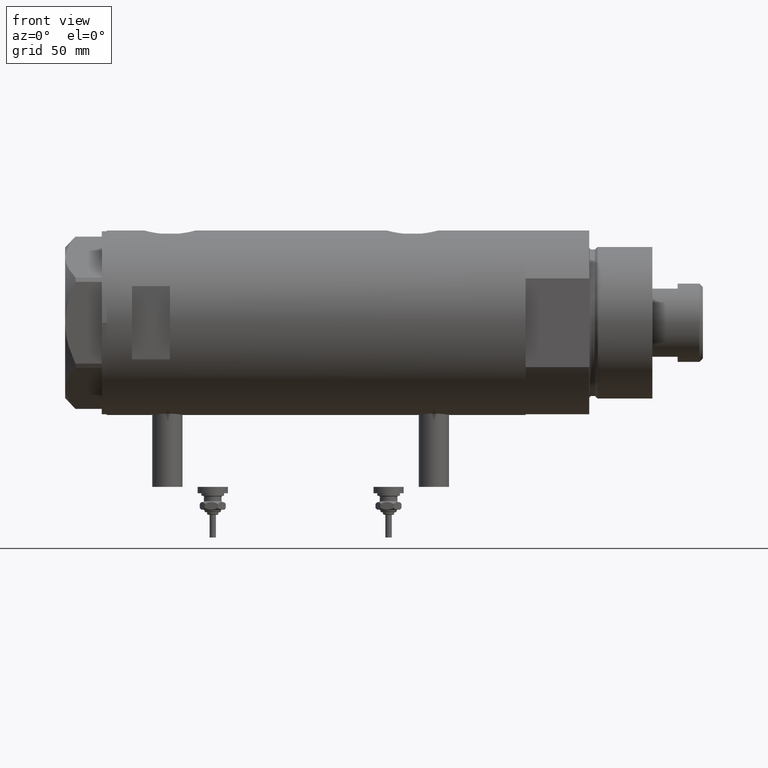
[diagram: clean part render]
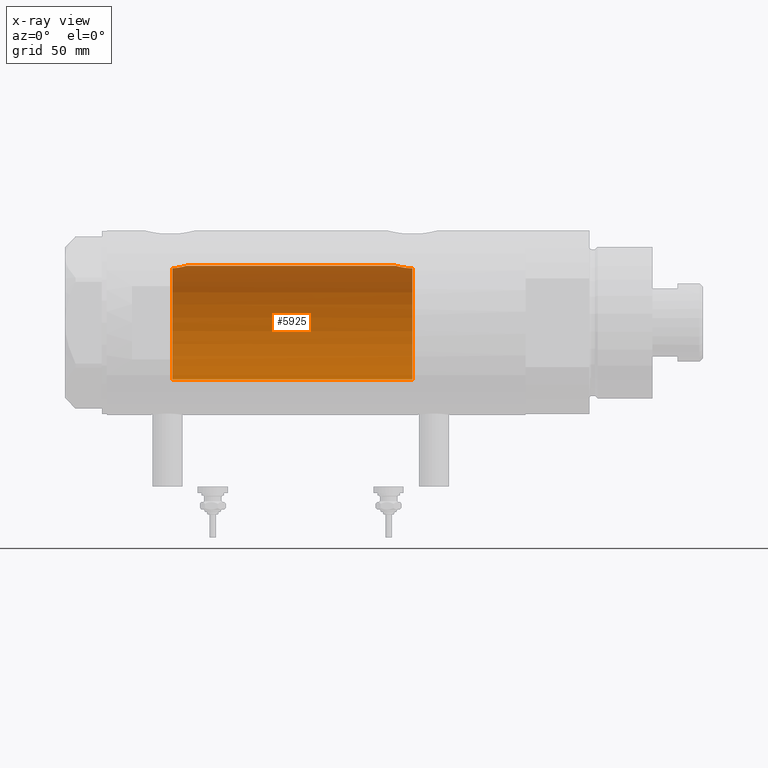
[diagram: x-ray — body ghosted, one internal face saturated and labeled with its STEP entity id]
A machine part, front view, then the same camera in x-ray: the body is ghosted and one INTERNAL B-rep face — a face not visible from any outside direction — is saturated and labeled: STEP entity #5925.
In plain terms, the highlighted cylindrical surface (partial cylindrical patch) has radius 22.5 mm, axis along (1, 0, -0).
Its self-contained STEP definition (entity closure, byte-faithful):
#17 = CARTESIAN_POINT ( 'NONE',  ( 22.14421896774458887, 3.996618394220599946, 52.65850411031065192 ) ) ;
#48 = CARTESIAN_POINT ( 'NONE',  ( 21.58771824211648038, 6.342145538420561834, 56.13591924784430631 ) ) ;
#147 = LINE ( 'NONE', #2015, #4623 ) ;
#229 = EDGE_CURVE ( 'NONE', #388, #4744, #380, .T. ) ;
#334 = CARTESIAN_POINT ( 'NONE',  ( 22.31307373663816662, 2.921646833104065255, -32.18858613169776817 ) ) ;
#358 = CARTESIAN_POINT ( 'NONE',  ( 21.54248662244912893, 6.494090541481658541, -37.01861175082140676 ) ) ;
#380 = LINE ( 'NONE', #934, #2686 ) ;
#388 = VERTEX_POINT ( 'NONE', #1084 ) ;
#490 = CARTESIAN_POINT ( 'NONE',  ( 21.55996057785741726, 6.435875139617805551, 56.51641692772588499 ) ) ;
#552 = CARTESIAN_POINT ( 'NONE',  ( 22.44738562510071489, 1.549445000368393277, 51.50203276325539292 ) ) ;
#586 = CARTESIAN_POINT ( 'NONE',  ( -22.50000000000000355, 0.000000000000000000, -38.09999999999999432 ) ) ;
#644 = CARTESIAN_POINT ( 'NONE',  ( -22.50000000000000355, 0.000000000000000000, 56.90000000000000568 ) ) ;
#707 = DIRECTION ( 'NONE',  ( -1.000000000000000000, 0.000000000000000000, 0.000000000000000000 ) ) ;
#786 = VERTEX_POINT ( 'NONE', #586 ) ;
#816 = CARTESIAN_POINT ( 'NONE',  ( 22.25860915731085754, 3.306748059303223464, -32.39512753277105617 ) ) ;
#849 = CARTESIAN_POINT ( 'NONE',  ( 21.98170506496023435, 4.804030677015544981, -33.59847163284562299 ) ) ;
#925 = CARTESIAN_POINT ( 'NONE',  ( 21.85834467356397681, 5.340944334976049923, 54.03736885285049851 ) ) ;
#934 = CARTESIAN_POINT ( 'NONE',  ( 22.50000000000000355, 2.755455298081545172E-15, 82.90000000000000568 ) ) ;
#989 = ORIENTED_EDGE ( 'NONE', *, *, #2673, .T. ) ;
#1039 = CARTESIAN_POINT ( 'NONE',  ( 22.34487948028763071, 2.662928462767973237, 51.87031008565885060 ) ) ;
#1058 = B_SPLINE_CURVE_WITH_KNOTS ( 'NONE', 3,
 ( #4439, #4957, #5810, #5328, #4012, #334, #816, #5897, #2146, #849, #1681, #1215, #5861, #3569, #1770, #3116, #4471, #358, #1705, #3602, #2574, #2112 ),
 .UNSPECIFIED., .F., .F.,
 ( 4, 2, 2, 2, 2, 2, 2, 2, 2, 2, 4 ),
 ( 0.02068572879290663316, 0.02197833177876012262, 0.02327093476461361554, 0.02456353775046710500, 0.02585614073632059445, 0.02650244222924734785, 0.02714874372217410126, 0.02844134670802762888, 0.02973394969388114956, 0.03038025118680791337, 0.03102655267973467718 ),
 .UNSPECIFIED. ) ;
#1084 = CARTESIAN_POINT ( 'NONE',  ( 22.50000000000000355, 0.000000000000000000, 51.32000000000000028 ) ) ;
#1182 = EDGE_CURVE ( 'NONE', #786, #2242, #4816, .T. ) ;
#1215 = CARTESIAN_POINT ( 'NONE',  ( 21.88602906110443058, 5.222191658358659616, -34.09110908501991588 ) ) ;
#1306 = DIRECTION ( 'NONE',  ( -1.000000000000000000, 0.000000000000000000, 0.000000000000000000 ) ) ;
#1359 = EDGE_CURVE ( 'NONE', #3585, #388, #4792, .T. ) ;
#1396 = CARTESIAN_POINT ( 'NONE',  ( 22.41810768969941847, 1.927264596308556399, 51.60552498238021002 ) ) ;
#1446 = CARTESIAN_POINT ( 'NONE',  ( 21.80257506594836059, 5.561983929949493088, 54.36293428743496747 ) ) ;
#1482 = CARTESIAN_POINT ( 'NONE',  ( 21.70300828301578733, 5.938634204148080187, 55.04008341356918521 ) ) ;
#1602 = FACE_OUTER_BOUND ( 'NONE', #2014, .T. ) ;
#1680 = CARTESIAN_POINT ( 'NONE',  ( 21.53958216864942088, 6.503568251352486840, 56.90000000000000568 ) ) ;
#1681 = CARTESIAN_POINT ( 'NONE',  ( 21.94924653817634663, 4.949760619110008975, -33.75922104935666113 ) ) ;
#1705 = CARTESIAN_POINT ( 'NONE',  ( 21.53277870401796434, 6.526097350343573744, -37.23193080670432664 ) ) ;
#1770 = CARTESIAN_POINT ( 'NONE',  ( 21.71097692913352617, 5.908765693315405798, -35.17224774632267525 ) ) ;
#1837 = CARTESIAN_POINT ( 'NONE',  ( 22.45973433770731020, 1.359115216171840279, 51.45894713662338660 ) ) ;
#1951 = CARTESIAN_POINT ( 'NONE',  ( 21.65875036540690601, 6.096384986856001831, 55.39350157007414310 ) ) ;
#1967 = EDGE_CURVE ( 'NONE', #4744, #2242, #1058, .T. ) ;
#2002 = CYLINDRICAL_SURFACE ( 'NONE', #2818, 22.50000000000000355 ) ;
#2014 = EDGE_LOOP ( 'NONE', ( #4412, #3006, #989, #2357, #3227, #3695 ) ) ;
#2015 = CARTESIAN_POINT ( 'NONE',  ( -22.50000000000000355, 0.000000000000000000, 82.90000000000000568 ) ) ;
#2112 = CARTESIAN_POINT ( 'NONE',  ( 21.51635656889892800, 6.580000000000002736, -38.10000000000000142 ) ) ;
#2146 = CARTESIAN_POINT ( 'NONE',  ( 22.07793805162484446, 4.348669293362732446, -33.14321183416397076 ) ) ;
#2242 = VERTEX_POINT ( 'NONE', #2866 ) ;
#2340 = CARTESIAN_POINT ( 'NONE',  ( 21.53958216864942088, 6.503568251352486840, 56.90000000000000568 ) ) ;
#2357 = ORIENTED_EDGE ( 'NONE', *, *, #4353, .T. ) ;
#2500 = CIRCLE ( 'NONE', #5297, 22.50000000000000355 ) ;
#2538 = CARTESIAN_POINT ( 'NONE',  ( 0.000000000000000000, 0.000000000000000000, 56.90000000000000568 ) ) ;
#2552 = CARTESIAN_POINT ( 'NONE',  ( 0.000000000000000000, 0.000000000000000000, 82.90000000000000568 ) ) ;
#2574 = CARTESIAN_POINT ( 'NONE',  ( 21.51635656889893156, 6.580000000000002736, -37.88312317022887754 ) ) ;
#2673 = EDGE_CURVE ( 'NONE', #3585, #5149, #2500, .T. ) ;
#2686 = VECTOR ( 'NONE', #4118, 1000.000000000000000 ) ;
#2741 = CARTESIAN_POINT ( 'NONE',  ( 22.03020271031499888, 4.583618747547679284, 53.16326305060303525 ) ) ;
#2766 = CARTESIAN_POINT ( 'NONE',  ( 21.54850992350584349, 6.473999851071386757, 56.70769989068857342 ) ) ;
#2818 = AXIS2_PLACEMENT_3D ( 'NONE', #2552, #5331, #707 ) ;
#2866 = CARTESIAN_POINT ( 'NONE',  ( 21.51635656889892800, 6.580000000000002736, -38.10000000000000142 ) ) ;
#2887 = CARTESIAN_POINT ( 'NONE',  ( 22.50000000000000355, 8.058593785575293352E-16, -31.51999999999999957 ) ) ;
#3006 = ORIENTED_EDGE ( 'NONE', *, *, #1359, .F. ) ;
#3116 = CARTESIAN_POINT ( 'NONE',  ( 21.61738790272778843, 6.242481197317898634, -35.97475324290417831 ) ) ;
#3227 = ORIENTED_EDGE ( 'NONE', *, *, #1182, .T. ) ;
#3238 = CARTESIAN_POINT ( 'NONE',  ( 22.50000000000000355, 0.3947970979781463829, 51.31999999999999318 ) ) ;
#3302 = CARTESIAN_POINT ( 'NONE',  ( 21.97198143592078878, 4.852313884858198811, 53.43898489903312310 ) ) ;
#3569 = CARTESIAN_POINT ( 'NONE',  ( 21.76592257976932032, 5.705656113855375189, -34.79484284637812408 ) ) ;
#3585 = VERTEX_POINT ( 'NONE', #1680 ) ;
#3602 = CARTESIAN_POINT ( 'NONE',  ( 21.51969523957628283, 6.569111213712935715, -37.66380209493692632 ) ) ;
#3670 = CARTESIAN_POINT ( 'NONE',  ( 22.48961798642638499, 0.7839168256130851775, 51.35525408827136573 ) ) ;
#3695 = ORIENTED_EDGE ( 'NONE', *, *, #1967, .F. ) ;
#3697 = CARTESIAN_POINT ( 'NONE',  ( 21.60406082673097927, 6.286405977953741342, 55.94666670735803393 ) ) ;
#3861 = DIRECTION ( 'NONE',  ( -0.000000000000000000, -0.000000000000000000, -1.000000000000000000 ) ) ;
#4012 = CARTESIAN_POINT ( 'NONE',  ( 22.40265168709897736, 2.128491761919761416, -31.85897789146818582 ) ) ;
#4118 = DIRECTION ( 'NONE',  ( -0.000000000000000000, -0.000000000000000000, -1.000000000000000000 ) ) ;
#4353 = EDGE_CURVE ( 'NONE', #5149, #786, #147, .T. ) ;
#4395 = DIRECTION ( 'NONE',  ( 0.000000000000000000, 0.000000000000000000, 1.000000000000000000 ) ) ;
#4412 = ORIENTED_EDGE ( 'NONE', *, *, #229, .F. ) ;
#4439 = CARTESIAN_POINT ( 'NONE',  ( 22.50000000000000355, 8.058593785575293352E-16, -31.51999999999999957 ) ) ;
#4471 = CARTESIAN_POINT ( 'NONE',  ( 21.58039466125149630, 6.367443256290042264, -36.38625661091905528 ) ) ;
#4571 = CARTESIAN_POINT ( 'NONE',  ( 22.40112435233285026, 2.115025885874699973, 51.66613662186026090 ) ) ;
#4623 = VECTOR ( 'NONE', #3861, 1000.000000000000000 ) ;
#4744 = VERTEX_POINT ( 'NONE', #2887 ) ;
#4792 = B_SPLINE_CURVE_WITH_KNOTS ( 'NONE', 3,
 ( #2340, #2766, #490, #48, #3697, #1951, #1482, #1446, #925, #3302, #2741, #17, #5119, #5547, #1039, #4571, #1396, #552, #1837, #3670, #3238, #5517 ),
 .UNSPECIFIED., .F., .F.,
 ( 4, 2, 2, 2, 2, 2, 2, 2, 2, 2, 4 ),
 ( 0.03202894702871426219, 0.03261250414633486139, 0.03319606126395546059, 0.03436317549919667980, 0.03553028973443790595, 0.03669740396967912516, 0.03786451820492034437, 0.03903163244016157052, 0.03961518955778217665, 0.04019874667540278973, 0.04136586091064400894 ),
 .UNSPECIFIED. ) ;
#4816 = CIRCLE ( 'NONE', #5389, 22.50000000000000355 ) ;
#4957 = CARTESIAN_POINT ( 'NONE',  ( 22.50000000000000711, 0.4308769323960432440, -31.52000000000001378 ) ) ;
#5119 = CARTESIAN_POINT ( 'NONE',  ( 22.20005338163447206, 3.677069589895788582, 52.42964083487822791 ) ) ;
#5149 = VERTEX_POINT ( 'NONE', #644 ) ;
#5297 = AXIS2_PLACEMENT_3D ( 'NONE', #2538, #4395, #5764 ) ;
#5328 = CARTESIAN_POINT ( 'NONE',  ( 22.43846943857365872, 1.717024460055897039, -31.73305400432138867 ) ) ;
#5331 = DIRECTION ( 'NONE',  ( -0.000000000000000000, -0.000000000000000000, -1.000000000000000000 ) ) ;
#5389 = AXIS2_PLACEMENT_3D ( 'NONE', #5933, #5420, #1306 ) ;
#5420 = DIRECTION ( 'NONE',  ( 0.000000000000000000, 0.000000000000000000, -1.000000000000000000 ) ) ;
#5517 = CARTESIAN_POINT ( 'NONE',  ( 22.50000000000000355, 0.000000000000000000, 51.32000000000000028 ) ) ;
#5547 = CARTESIAN_POINT ( 'NONE',  ( 22.30007684883240060, 3.011608117356138425, 52.03690468166832517 ) ) ;
#5764 = DIRECTION ( 'NONE',  ( 1.000000000000000000, 0.000000000000000000, 0.000000000000000000 ) ) ;
#5810 = CARTESIAN_POINT ( 'NONE',  ( 22.48752745446833501, 0.8626660575027224054, -31.56226479722901956 ) ) ;
#5861 = CARTESIAN_POINT ( 'NONE',  ( 21.85514244747245272, 5.349553529053609147, -34.26278474480277225 ) ) ;
#5897 = CARTESIAN_POINT ( 'NONE',  ( 22.14109776314135658, 4.018961829707383693, -32.87237162697964266 ) ) ;
#5925 = ADVANCED_FACE ( 'NONE', ( #1602 ), #2002, .F. ) ;
#5933 = CARTESIAN_POINT ( 'NONE',  ( 0.000000000000000000, 0.000000000000000000, -38.09999999999999432 ) ) ;